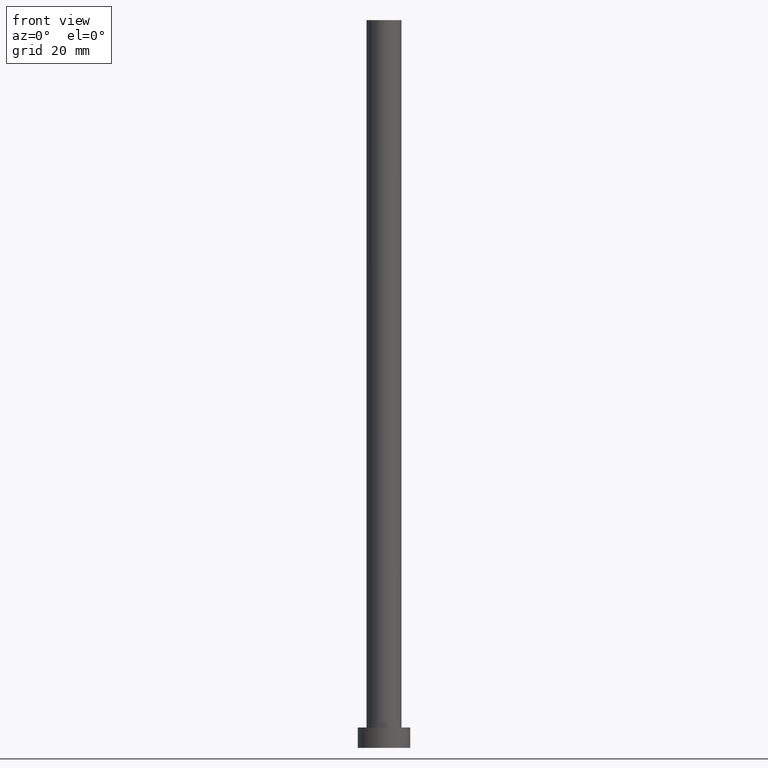
[diagram: clean part render]
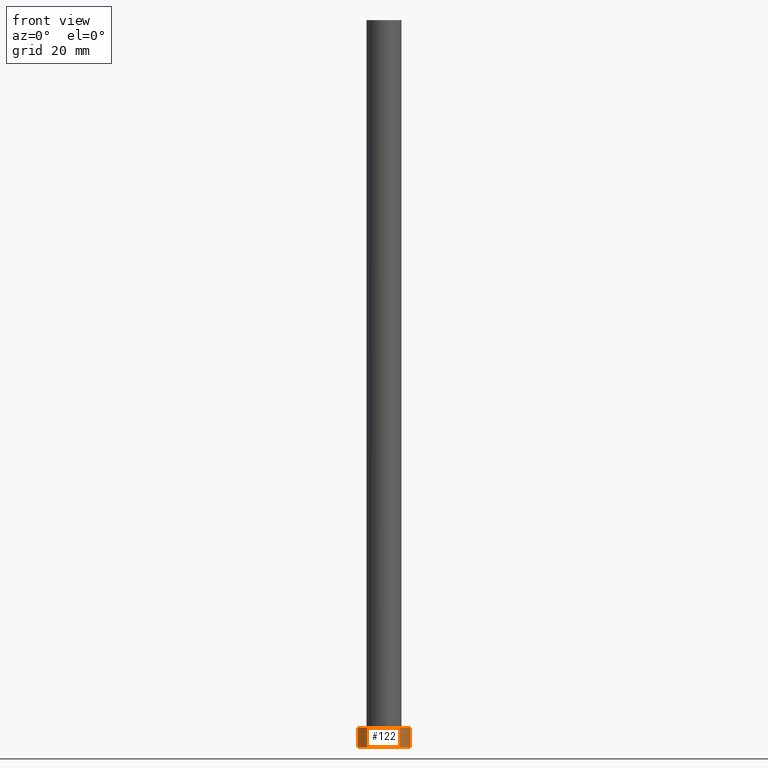
[diagram: same view with one face highlighted and labeled with its STEP entity id]
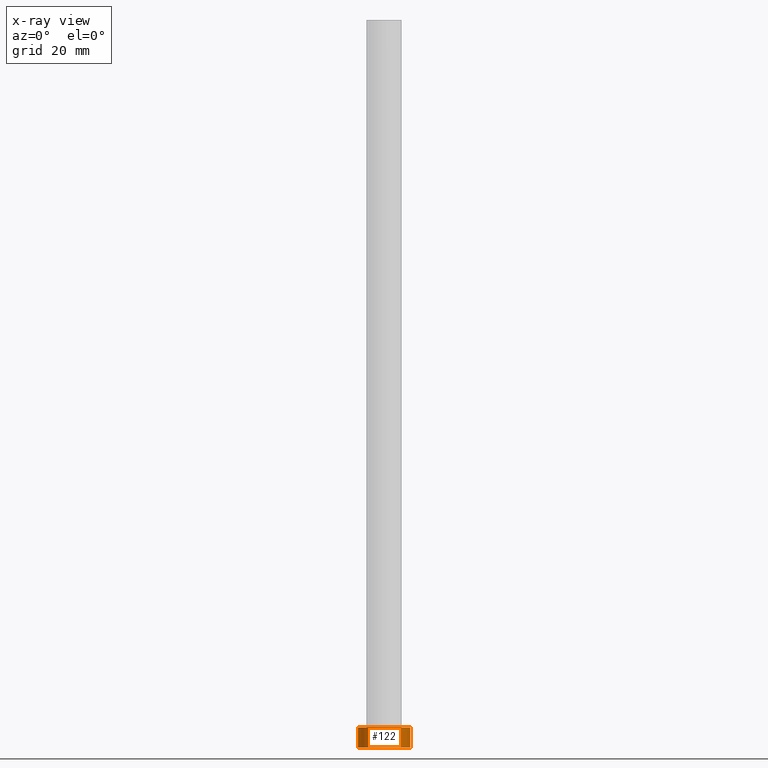
[diagram: x-ray of the same camera — body ghosted, the highlighted face saturated]
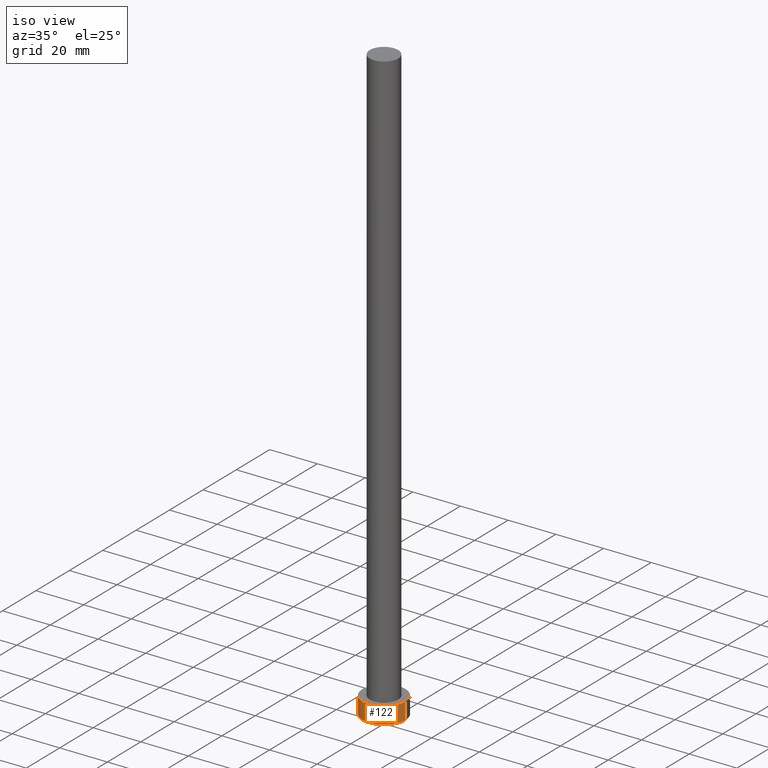
[diagram: same view with one face highlighted and labeled with its STEP entity id]
A machine part, front view. The second image highlights one B-rep face of the part: STEP entity #122.
The next image is the same camera in x-ray: the body ghosted, the highlighted face saturated — about 0% of this face is hidden behind the body in this view.
A second angle (iso view) of the same face is appended — the face is thin or edge-on in the first view.
In plain terms, the highlighted cylindrical surface (edge-blend (fillet) strip) has radius 9 mm, axis along (-0, -0, -1).
Its self-contained STEP definition (entity closure, byte-faithful):
#1 = EDGE_CURVE ( 'NONE', #241, #86, #206, .T. ) ;
#15 = CARTESIAN_POINT ( 'NONE',  ( -9.000000000000000000, 0.000000000000000000, 7.000000000000000000 ) ) ;
#19 = DIRECTION ( 'NONE',  ( 0.000000000000000000, 0.000000000000000000, 1.000000000000000000 ) ) ;
#22 = CYLINDRICAL_SURFACE ( 'NONE', #66, 9.000000000000000000 ) ;
#54 = DIRECTION ( 'NONE',  ( -0.000000000000000000, -0.000000000000000000, -1.000000000000000000 ) ) ;
#56 = EDGE_CURVE ( 'NONE', #133, #241, #191, .T. ) ;
#59 = DIRECTION ( 'NONE',  ( -1.000000000000000000, 0.000000000000000000, 0.000000000000000000 ) ) ;
#65 = ORIENTED_EDGE ( 'NONE', *, *, #1, .F. ) ;
#66 = AXIS2_PLACEMENT_3D ( 'NONE', #94, #54, #59 ) ;
#69 = ORIENTED_EDGE ( 'NONE', *, *, #56, .F. ) ;
#84 = EDGE_CURVE ( 'NONE', #133, #190, #205, .T. ) ;
#86 = VERTEX_POINT ( 'NONE', #129 ) ;
#89 = CARTESIAN_POINT ( 'NONE',  ( 9.000000000000000000, 1.102182119232617714E-15, 7.000000000000000000 ) ) ;
#90 = DIRECTION ( 'NONE',  ( 0.000000000000000000, 0.000000000000000000, 1.000000000000000000 ) ) ;
#94 = CARTESIAN_POINT ( 'NONE',  ( 0.000000000000000000, 0.000000000000000000, 7.000000000000000000 ) ) ;
#109 = CIRCLE ( 'NONE', #119, 9.000000000000000000 ) ;
#114 = EDGE_LOOP ( 'NONE', ( #65, #69, #131, #208 ) ) ;
#115 = VECTOR ( 'NONE', #189, 1000.000000000000000 ) ;
#119 = AXIS2_PLACEMENT_3D ( 'NONE', #179, #19, #193 ) ;
#122 = ADVANCED_FACE ( 'NONE', ( #255 ), #22, .T. ) ;
#129 = CARTESIAN_POINT ( 'NONE',  ( 9.000000000000000000, 1.102182119232617714E-15, 0.000000000000000000 ) ) ;
#131 = ORIENTED_EDGE ( 'NONE', *, *, #84, .T. ) ;
#133 = VERTEX_POINT ( 'NONE', #233 ) ;
#161 = CARTESIAN_POINT ( 'NONE',  ( 9.000000000000000000, 1.102182119232617714E-15, 7.000000000000000000 ) ) ;
#171 = DIRECTION ( 'NONE',  ( -0.000000000000000000, -0.000000000000000000, -1.000000000000000000 ) ) ;
#173 = CARTESIAN_POINT ( 'NONE',  ( 0.000000000000000000, 0.000000000000000000, 7.000000000000000000 ) ) ;
#179 = CARTESIAN_POINT ( 'NONE',  ( 0.000000000000000000, 0.000000000000000000, 0.000000000000000000 ) ) ;
#183 = AXIS2_PLACEMENT_3D ( 'NONE', #173, #90, #250 ) ;
#189 = DIRECTION ( 'NONE',  ( -0.000000000000000000, -0.000000000000000000, -1.000000000000000000 ) ) ;
#190 = VERTEX_POINT ( 'NONE', #210 ) ;
#191 = CIRCLE ( 'NONE', #183, 9.000000000000000000 ) ;
#193 = DIRECTION ( 'NONE',  ( 1.000000000000000000, 0.000000000000000000, 0.000000000000000000 ) ) ;
#204 = EDGE_CURVE ( 'NONE', #190, #86, #109, .T. ) ;
#205 = LINE ( 'NONE', #15, #225 ) ;
#206 = LINE ( 'NONE', #89, #115 ) ;
#208 = ORIENTED_EDGE ( 'NONE', *, *, #204, .T. ) ;
#210 = CARTESIAN_POINT ( 'NONE',  ( -9.000000000000000000, 0.000000000000000000, 0.000000000000000000 ) ) ;
#225 = VECTOR ( 'NONE', #171, 1000.000000000000000 ) ;
#233 = CARTESIAN_POINT ( 'NONE',  ( -9.000000000000000000, 0.000000000000000000, 7.000000000000000000 ) ) ;
#241 = VERTEX_POINT ( 'NONE', #161 ) ;
#250 = DIRECTION ( 'NONE',  ( 1.000000000000000000, 0.000000000000000000, 0.000000000000000000 ) ) ;
#255 = FACE_OUTER_BOUND ( 'NONE', #114, .T. ) ;